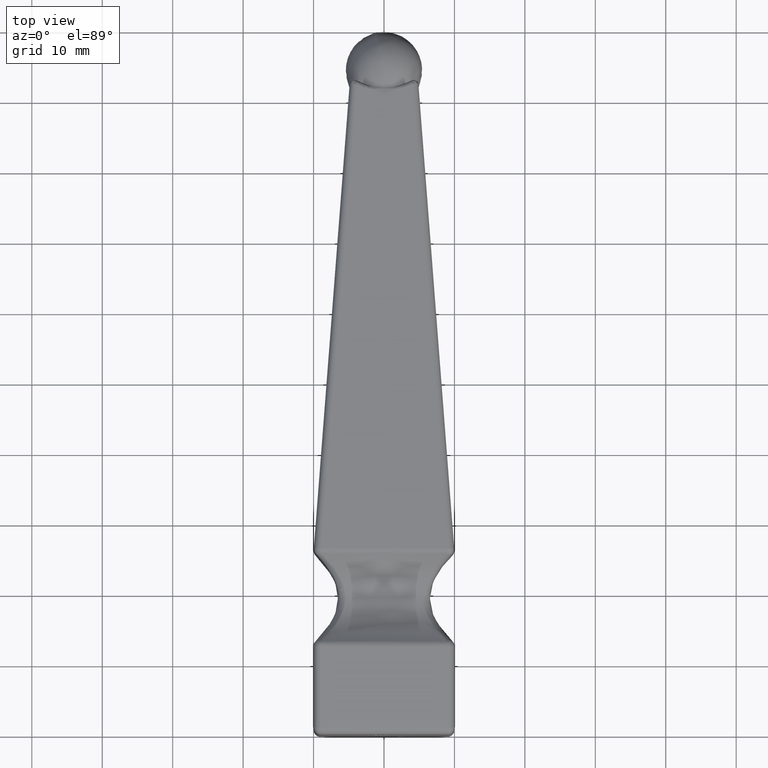
[diagram: clean part render]
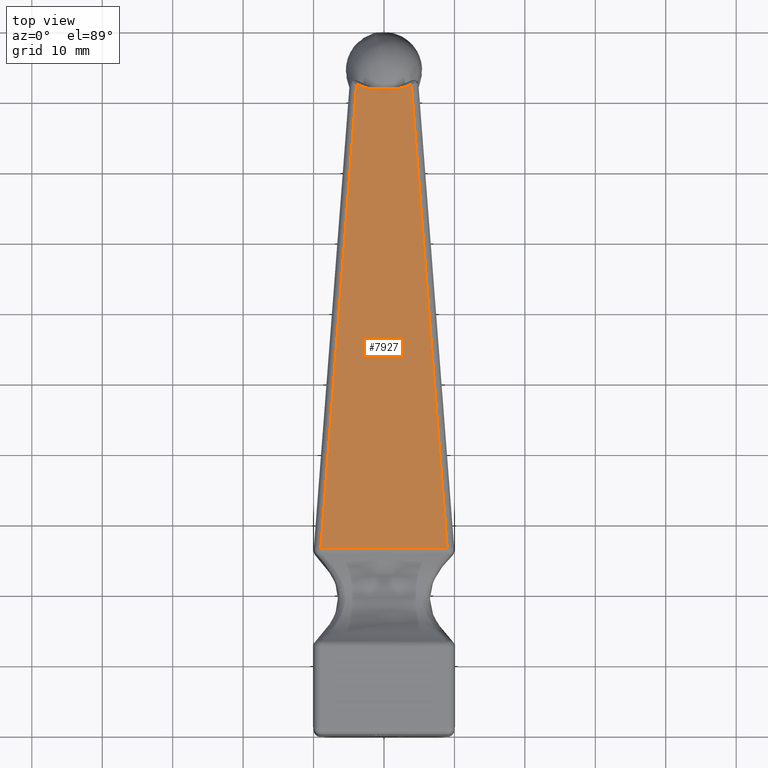
[diagram: same view with one face highlighted and labeled with its STEP entity id]
A machine part, top view. The second image highlights one B-rep face of the part: STEP entity #7927.
In plain terms, the highlighted planar face has unit normal (0, 0.0768, 0.997).
Its self-contained STEP definition (entity closure, byte-faithful):
#237 = CARTESIAN_POINT ( 'NONE',  ( 3.062738641251130378, 42.06801958278263243, 4.910315528437486421 ) ) ;
#269 = EDGE_CURVE ( 'NONE', #11829, #15621, #8983, .T. ) ;
#494 = ORIENTED_EDGE ( 'NONE', *, *, #8491, .T. ) ;
#902 = CARTESIAN_POINT ( 'NONE',  ( 1.091453970633142978, 41.77807265351189159, 4.932652180766491590 ) ) ;
#951 = CARTESIAN_POINT ( 'NONE',  ( 2.414122359892544978, 41.86784955320309365, 4.925736034419910148 ) ) ;
#992 = CARTESIAN_POINT ( 'NONE',  ( -2.988825646673356040, -23.52649697948168850, 9.963522730271185068 ) ) ;
#1974 = CARTESIAN_POINT ( 'NONE',  ( 0.4275323054756623997, 41.84481562251651354, 4.927510500191321086 ) ) ;
#2001 = CARTESIAN_POINT ( 'NONE',  ( -3.062738641251125049, 42.06801958278263243, 4.910315528437486421 ) ) ;
#2042 = CARTESIAN_POINT ( 'NONE',  ( 8.966476940020079667, -23.52649697948172758, 9.963522730271186845 ) ) ;
#2147 = CARTESIAN_POINT ( 'NONE',  ( 3.794707603699265519E-15, -23.52649697948168850, 9.963522730271185068 ) ) ;
#2203 = EDGE_LOOP ( 'NONE', ( #13937, #4209, #5212, #494, #4967, #12529, #8123 ) ) ;
#2301 = EDGE_CURVE ( 'NONE', #3836, #12052, #2700, .T. ) ;
#2635 = VECTOR ( 'NONE', #11650, 1000.000000000000227 ) ;
#2700 = B_SPLINE_CURVE_WITH_KNOTS ( 'NONE', 3,
 ( #2147, #4454, #6876, #2042 ),
 .UNSPECIFIED., .F., .F.,
 ( 4, 4 ),
 ( 0.000000000000000000, 0.008966476940020073200 ),
 .UNSPECIFIED. ) ;
#3055 = CARTESIAN_POINT ( 'NONE',  ( -7.122950570566532136, 0.4038933932325586285, 8.119996360817641090 ) ) ;
#3272 = EDGE_CURVE ( 'NONE', #3398, #11829, #7054, .T. ) ;
#3381 = LINE ( 'NONE', #3055, #2635 ) ;
#3398 = VERTEX_POINT ( 'NONE', #15222 ) ;
#3813 = VERTEX_POINT ( 'NONE', #8480 ) ;
#3836 = VERTEX_POINT ( 'NONE', #5000 ) ;
#4102 = VECTOR ( 'NONE', #9835, 1000.000000000000227 ) ;
#4209 = ORIENTED_EDGE ( 'NONE', *, *, #2301, .T. ) ;
#4454 = CARTESIAN_POINT ( 'NONE',  ( 2.988825646673361813, -23.52649697948168850, 9.963522730271185068 ) ) ;
#4638 = CARTESIAN_POINT ( 'NONE',  ( -5.977651293346715633, -23.52649697948169205, 9.963522730271185068 ) ) ;
#4838 = CARTESIAN_POINT ( 'NONE',  ( 2.633345761847314392, 41.93550427621111965, 4.920524115017809841 ) ) ;
#4967 = ORIENTED_EDGE ( 'NONE', *, *, #3272, .T. ) ;
#5000 = CARTESIAN_POINT ( 'NONE',  ( 3.794707603699265519E-15, -23.52649697948168850, 9.963522730271185068 ) ) ;
#5212 = ORIENTED_EDGE ( 'NONE', *, *, #13087, .T. ) ;
#5610 = CARTESIAN_POINT ( 'NONE',  ( -1.766879838677438919, 41.77672702693089235, 4.932755843851249544 ) ) ;
#5618 = LINE ( 'NONE', #11113, #4102 ) ;
#5763 = CARTESIAN_POINT ( 'NONE',  ( 0.8702293358454269434, 41.79675725618621129, 4.931212774338247229 ) ) ;
#5884 = CARTESIAN_POINT ( 'NONE',  ( -10.00010000000000154, 0.6242328109283945548, 8.103022064935887059 ) ) ;
#6799 = CARTESIAN_POINT ( 'NONE',  ( -2.203033280913987646, 41.82757651435801449, 4.928838550005012031 ) ) ;
#6876 = CARTESIAN_POINT ( 'NONE',  ( 5.977651293346719186, -23.52649697948166363, 9.963522730271183292 ) ) ;
#6954 = CARTESIAN_POINT ( 'NONE',  ( -8.966476940020069009, -23.52649697948161034, 9.963522730271177963 ) ) ;
#7019 = CARTESIAN_POINT ( 'NONE',  ( 0.2060317910209865933, 41.87540252062722601, 4.925154176188718758 ) ) ;
#7054 = B_SPLINE_CURVE_WITH_KNOTS ( 'NONE', 3,
 ( #12822, #951, #9429, #13026, #9212, #902, #5763, #1974, #7019, #10431, #15519, #8229, #11648, #12880, #5610, #6799, #15306, #15617 ),
 .UNSPECIFIED., .F., .F.,
 ( 4, 2, 2, 2, 2, 2, 2, 2, 4 ),
 ( 0.000000000000000000, 0.0006621978398341528535, 0.001324395679668305707, 0.001986593519502458452, 0.002648791359336611414, 0.003310989199170764376, 0.003973187039004916904, 0.004635384878839070300, 0.005297582718673222828 ),
 .UNSPECIFIED. ) ;
#7094 = DIRECTION ( 'NONE',  ( 0.000000000000000000, 0.07680945347119648436, 0.9970457902511078441 ) ) ;
#7126 =( BOUNDED_CURVE ( )  B_SPLINE_CURVE ( 3, ( #10893, #8702, #237, #4838 ),
 .UNSPECIFIED., .F., .F. ) 
 B_SPLINE_CURVE_WITH_KNOTS ( ( 4, 4 ),
 ( 2.691431863417829362, 2.842254827186069921 ),
 .UNSPECIFIED. ) 
 CURVE ( )  GEOMETRIC_REPRESENTATION_ITEM ( )  RATIONAL_B_SPLINE_CURVE ( ( 1.000000000000000000, 0.9981052676501827037, 0.9981052676501827037, 1.000000000000000000 ) ) 
 REPRESENTATION_ITEM ( '' )  );
#7927 = ADVANCED_FACE ( 'NONE', ( #9491 ), #13149, .T. ) ;
#7995 = CARTESIAN_POINT ( 'NONE',  ( -2.633345761847315725, 41.93550427621111965, 4.920524115017809841 ) ) ;
#8030 = EDGE_CURVE ( 'NONE', #3813, #3836, #11780, .T. ) ;
#8123 = ORIENTED_EDGE ( 'NONE', *, *, #9345, .T. ) ;
#8229 = CARTESIAN_POINT ( 'NONE',  ( -0.8919895999203613091, 41.79472297281808579, 4.931369489501420844 ) ) ;
#8480 = CARTESIAN_POINT ( 'NONE',  ( -8.966476940020069009, -23.52649697948161034, 9.963522730271177963 ) ) ;
#8491 = EDGE_CURVE ( 'NONE', #12618, #3398, #7126, .T. ) ;
#8702 = CARTESIAN_POINT ( 'NONE',  ( 3.480927437136553504, 42.23250873851741716, 4.897643771254954537 ) ) ;
#8983 =( BOUNDED_CURVE ( )  B_SPLINE_CURVE ( 3, ( #7995, #2001, #9018, #11515 ),
 .UNSPECIFIED., .F., .T. ) 
 B_SPLINE_CURVE_WITH_KNOTS ( ( 4, 4 ),
 ( 3.440930479993516311, 3.591753443761755982 ),
 .UNSPECIFIED. ) 
 CURVE ( )  GEOMETRIC_REPRESENTATION_ITEM ( )  RATIONAL_B_SPLINE_CURVE ( ( 1.000000000000000000, 0.9981052676501827037, 0.9981052676501827037, 1.000000000000000000 ) ) 
 REPRESENTATION_ITEM ( '' )  );
#9018 = CARTESIAN_POINT ( 'NONE',  ( -3.480927437136545066, 42.23250873851741005, 4.897643771254955425 ) ) ;
#9212 = CARTESIAN_POINT ( 'NONE',  ( 1.533270275454270193, 41.76801149007005876, 4.933427262987196471 ) ) ;
#9345 = EDGE_CURVE ( 'NONE', #15621, #3813, #3381, .T. ) ;
#9429 = CARTESIAN_POINT ( 'NONE',  ( 2.194300920624147722, 41.82599599512769828, 4.928960308523497424 ) ) ;
#9491 = FACE_OUTER_BOUND ( 'NONE', #2203, .T. ) ;
#9835 = DIRECTION ( 'NONE',  ( -0.07658387504978757254, 0.9941176088193574012, -0.07658387504978757254 ) ) ;
#10058 = CARTESIAN_POINT ( 'NONE',  ( 3.885535081983898298, 42.42803675464175939, 4.882580872235005032 ) ) ;
#10431 = CARTESIAN_POINT ( 'NONE',  ( -0.2354914841094474243, 41.87282148397977011, 4.925353011604523878 ) ) ;
#10893 = CARTESIAN_POINT ( 'NONE',  ( 3.885535081983898298, 42.42803675464175939, 4.882580872235005032 ) ) ;
#11113 = CARTESIAN_POINT ( 'NONE',  ( 3.808801972960722093, 43.42409153523106369, 4.805847763211828827 ) ) ;
#11515 = CARTESIAN_POINT ( 'NONE',  ( -3.885535081983896522, 42.42803675464174518, 4.882580872235005920 ) ) ;
#11648 = CARTESIAN_POINT ( 'NONE',  ( -1.111055935669669203, 41.77698212940802591, 4.932736191512271162 ) ) ;
#11650 = DIRECTION ( 'NONE',  ( -0.07658387504978757254, -0.9941176088193574012, 0.07658387504978757254 ) ) ;
#11747 = CARTESIAN_POINT ( 'NONE',  ( 3.794707603699265519E-15, -23.52649697948168850, 9.963522730271185068 ) ) ;
#11780 = B_SPLINE_CURVE_WITH_KNOTS ( 'NONE', 3,
 ( #6954, #4638, #992, #11747 ),
 .UNSPECIFIED., .F., .F.,
 ( 4, 4 ),
 ( 0.000000000000000000, 0.008966476940020078404 ),
 .UNSPECIFIED. ) ;
#11829 = VERTEX_POINT ( 'NONE', #13591 ) ;
#12052 = VERTEX_POINT ( 'NONE', #13064 ) ;
#12529 = ORIENTED_EDGE ( 'NONE', *, *, #269, .T. ) ;
#12618 = VERTEX_POINT ( 'NONE', #10058 ) ;
#12822 = CARTESIAN_POINT ( 'NONE',  ( 2.633345761847314392, 41.93550427621111965, 4.920524115017809841 ) ) ;
#12880 = CARTESIAN_POINT ( 'NONE',  ( -1.548447819134429526, 41.76836325778125314, 4.933400163844999575 ) ) ;
#13026 = CARTESIAN_POINT ( 'NONE',  ( 1.753881240206900838, 41.77580249590489814, 4.932827066982140352 ) ) ;
#13064 = CARTESIAN_POINT ( 'NONE',  ( 8.966476940020079667, -23.52649697948172758, 9.963522730271186845 ) ) ;
#13087 = EDGE_CURVE ( 'NONE', #12052, #12618, #5618, .T. ) ;
#13149 = PLANE ( 'NONE',  #15162 ) ;
#13591 = CARTESIAN_POINT ( 'NONE',  ( -2.633345761847315725, 41.93550427621111965, 4.920524115017809841 ) ) ;
#13867 = CARTESIAN_POINT ( 'NONE',  ( -3.885535081983896522, 42.42803675464174518, 4.882580872235005920 ) ) ;
#13937 = ORIENTED_EDGE ( 'NONE', *, *, #8030, .T. ) ;
#15162 = AXIS2_PLACEMENT_3D ( 'NONE', #5884, #7094, #15642 ) ;
#15222 = CARTESIAN_POINT ( 'NONE',  ( 2.633345761847314392, 41.93550427621111965, 4.920524115017809841 ) ) ;
#15306 = CARTESIAN_POINT ( 'NONE',  ( -2.421621350849876286, 41.87016382326521580, 4.925557749911421368 ) ) ;
#15519 = CARTESIAN_POINT ( 'NONE',  ( -0.4540110121071824212, 41.84164659553121624, 4.927754632640557020 ) ) ;
#15617 = CARTESIAN_POINT ( 'NONE',  ( -2.633345761847315725, 41.93550427621111965, 4.920524115017809841 ) ) ;
#15621 = VERTEX_POINT ( 'NONE', #13867 ) ;
#15642 = DIRECTION ( 'NONE',  ( 0.000000000000000000, -0.9970457902511078441, 0.07680945347119648436 ) ) ;